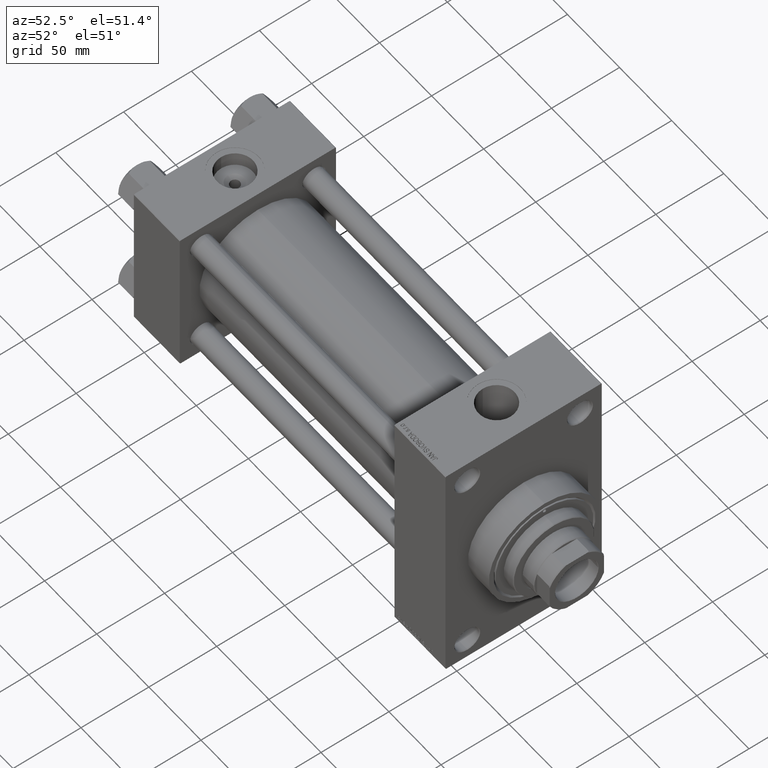
[diagram: clean part render]
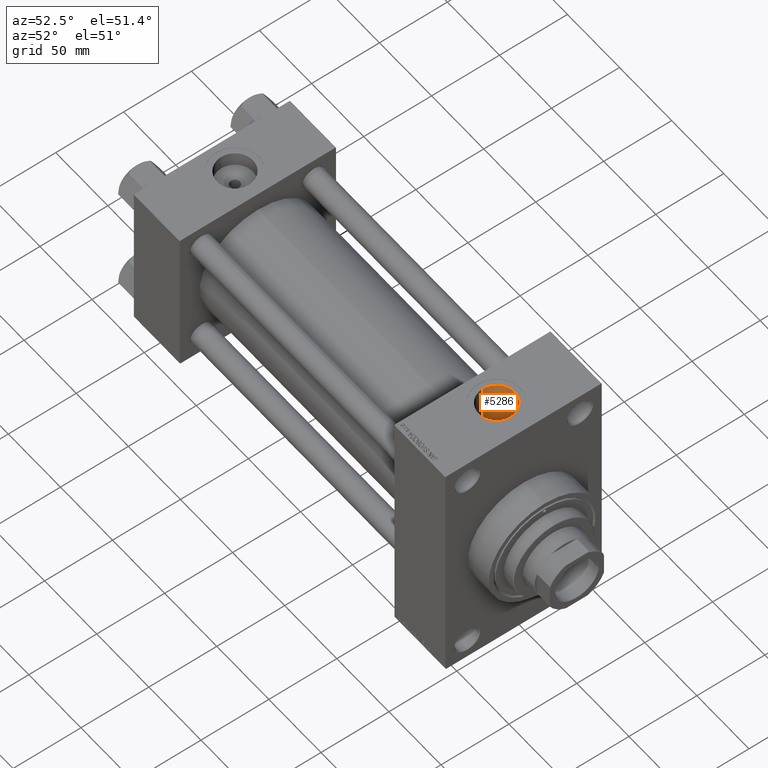
[diagram: same view with one face highlighted and labeled with its STEP entity id]
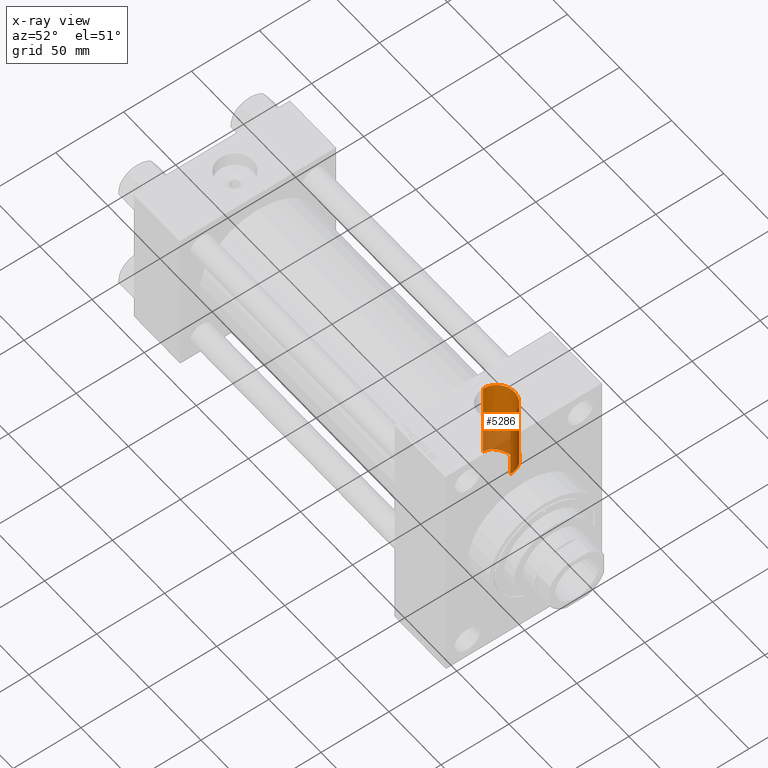
[diagram: x-ray of the same camera — body ghosted, the highlighted face saturated]
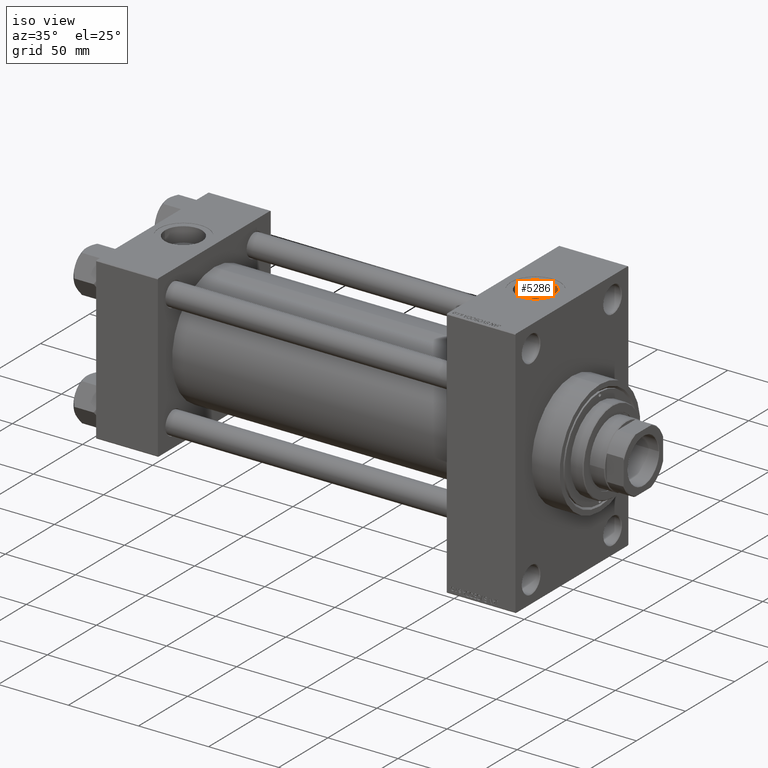
[diagram: same view with one face highlighted and labeled with its STEP entity id]
A machine part, auxiliary view. The second image highlights one B-rep face of the part: STEP entity #5286.
The next image is the same camera in x-ray: the body ghosted, the highlighted face saturated — about 26% of this face is hidden behind the body in this view.
A second angle (iso view) of the same face is appended — the face is thin or edge-on in the first view.
In plain terms, the highlighted cylindrical surface (edge-blend (fillet) strip) has radius 13.22 mm, axis along (0, 0, -1).
Its self-contained STEP definition (entity closure, byte-faithful):
#1492 = LINE ( 'NONE', #9232, #11199 ) ;
#2511 = EDGE_CURVE ( 'NONE', #24067, #32099, #21646, .T. ) ;
#2854 = CARTESIAN_POINT ( 'NONE',  ( 275.7400000000000091, 12.93293470176044480, 27.62225914004863725 ) ) ;
#3332 = EDGE_CURVE ( 'NONE', #7249, #31635, #1492, .T. ) ;
#3572 = CARTESIAN_POINT ( 'NONE',  ( 273.2851615108020269, 13.22613998524880330, 27.48307289366609751 ) ) ;
#4164 = DIRECTION ( 'NONE',  ( 0.000000000000000000, 0.000000000000000000, -1.000000000000000000 ) ) ;
#4218 = CARTESIAN_POINT ( 'NONE',  ( 277.2060821151613368, 12.55531642788233171, 33.74093801992368924 ) ) ;
#4615 = ORIENTED_EDGE ( 'NONE', *, *, #40670, .T. ) ;
#4694 = CARTESIAN_POINT ( 'NONE',  ( 284.6983450057127243, 6.168928695871298551, 35.46904263421718184 ) ) ;
#5286 = ADVANCED_FACE ( 'NONE', ( #25583 ), #18306, .F. ) ;
#6477 = CARTESIAN_POINT ( 'NONE',  ( 275.2536187678448414, 13.03598049970481298, 27.57401237756087653 ) ) ;
#6730 = CARTESIAN_POINT ( 'NONE',  ( 270.3256342958763412, 12.95594869095342005, 27.61177267963253001 ) ) ;
#6964 = CARTESIAN_POINT ( 'NONE',  ( 265.4271501200176431, 10.84687044312921067, 28.50745100355763739 ) ) ;
#7077 = EDGE_CURVE ( 'NONE', #45391, #24067, #30078, .T. ) ;
#7249 = VERTEX_POINT ( 'NONE', #35344 ) ;
#8328 = CARTESIAN_POINT ( 'NONE',  ( 282.2544909056828715, 9.447833359205615622, 34.73924717178597632 ) ) ;
#9232 = CARTESIAN_POINT ( 'NONE',  ( 286.2200000000000273, -9.241894346338513140E-15, 112.7999999999999829 ) ) ;
#9356 = AXIS2_PLACEMENT_3D ( 'NONE', #24749, #35164, #12895 ) ;
#10345 = CARTESIAN_POINT ( 'NONE',  ( 260.8710626762529046, 5.282033915368359978, 30.04254330308662446 ) ) ;
#10597 = CARTESIAN_POINT ( 'NONE',  ( 263.9320074090820185, 9.632030437268086942, 28.94142039359465457 ) ) ;
#11199 = VECTOR ( 'NONE', #45558, 1000.000000000000000 ) ;
#11239 = CARTESIAN_POINT ( 'NONE',  ( 278.5945103277782664, 12.00118958920800161, 33.94198458417642428 ) ) ;
#11319 = CARTESIAN_POINT ( 'NONE',  ( 261.5110741800254459, 6.613878971456253808, 29.78798023624083058 ) ) ;
#12895 = DIRECTION ( 'NONE',  ( 1.000000000000000000, 0.000000000000000000, 0.000000000000000000 ) ) ;
#14189 = ORIENTED_EDGE ( 'NONE', *, *, #7077, .T. ) ;
#14206 = CARTESIAN_POINT ( 'NONE',  ( 260.2233236804504486, 3.430416358514352559, 30.31031417239466563 ) ) ;
#14573 = DIRECTION ( 'NONE',  ( 0.000000000000000000, 0.000000000000000000, -1.000000000000000000 ) ) ;
#14611 = CARTESIAN_POINT ( 'NONE',  ( 286.0893087182808472, 1.892035420910307852, 35.95216273564662401 ) ) ;
#14688 = CARTESIAN_POINT ( 'NONE',  ( 259.9192796940201902, 1.977766912824119316, 30.43984725220107990 ) ) ;
#15090 = CARTESIAN_POINT ( 'NONE',  ( 276.4867003901546241, 12.77473711426742042, 33.65761171941716867 ) ) ;
#18204 = CARTESIAN_POINT ( 'NONE',  ( 275.7400000000000091, 12.93293470176044480, 112.7999999999999829 ) ) ;
#18231 = CARTESIAN_POINT ( 'NONE',  ( 275.7400000000000091, 12.93293470176044480, 27.62225914004863725 ) ) ;
#18306 = CYLINDRICAL_SURFACE ( 'NONE', #45286, 13.22000000000000952 ) ;
#18327 = CARTESIAN_POINT ( 'NONE',  ( 273.7777193278498089, 13.20633922326211618, 27.49264203546942653 ) ) ;
#18483 = CARTESIAN_POINT ( 'NONE',  ( 286.2200000000001410, 0.3819698288429343447, 36.00000000000001421 ) ) ;
#18960 = CARTESIAN_POINT ( 'NONE',  ( 259.7800000000000296, -1.086087741481131350E-14, 89.79999999999998295 ) ) ;
#19504 = ORIENTED_EDGE ( 'NONE', *, *, #25646, .F. ) ;
#20483 = CARTESIAN_POINT ( 'NONE',  ( 286.2200000000000273, 4.408731805096607676E-15, 36.00000000000000000 ) ) ;
#21235 = CARTESIAN_POINT ( 'NONE',  ( 272.2979727381282373, 13.21057355757989349, 27.49055875873992250 ) ) ;
#21646 = B_SPLINE_CURVE_WITH_KNOTS ( 'NONE', 3,
 ( #32619, #47383, #25603, #14688, #44478, #14206, #32380, #43517, #10345, #11319, #43766, #32856, #29012, #10597, #33103, #44231, #6964, #26091, #40357, #21720, #36484, #6730, #36726, #39888, #21235, #3572, #18327, #29255, #6477, #2854 ),
 .UNSPECIFIED., .F., .F.,
 ( 4, 2, 2, 2, 2, 2, 2, 2, 2, 2, 2, 2, 2, 2, 4 ),
 ( 0.04185757538675115297, 0.04333653936425788111, 0.04481550334176460926, 0.04629446731927133740, 0.04777343129677806555, 0.05073135925179159123, 0.05221032322929840264, 0.05368928720680521405, 0.05516825118431202546, 0.05664721516181883687, 0.05960514311683231398, 0.06108410709433896579, 0.06256307107184562455, 0.06404203504935228330, 0.06552099902685894206 ),
 .UNSPECIFIED. ) ;
#21720 = CARTESIAN_POINT ( 'NONE',  ( 267.9827127633823238, 12.27015841204412361, 27.92701712990833585 ) ) ;
#21834 = ORIENTED_EDGE ( 'NONE', *, *, #2511, .T. ) ;
#22190 = DIRECTION ( 'NONE',  ( 0.000000000000000000, 0.000000000000000000, -1.000000000000000000 ) ) ;
#22854 = CARTESIAN_POINT ( 'NONE',  ( 283.0210832298417358, 8.630590761265725774, 34.95143037011763454 ) ) ;
#23092 = CARTESIAN_POINT ( 'NONE',  ( 284.1498648550291932, 7.141648424859561750, 35.29067191690105432 ) ) ;
#23751 = CARTESIAN_POINT ( 'NONE',  ( 259.7800000000000296, -1.086087741481131350E-14, 112.7999999999999829 ) ) ;
#24067 = VERTEX_POINT ( 'NONE', #43857 ) ;
#24749 = CARTESIAN_POINT ( 'NONE',  ( 273.0000000000000000, -1.086087741481131350E-14, 89.79999999999998295 ) ) ;
#25000 = LINE ( 'NONE', #18204, #45165 ) ;
#25374 = ORIENTED_EDGE ( 'NONE', *, *, #3332, .F. ) ;
#25583 = FACE_OUTER_BOUND ( 'NONE', #40840, .T. ) ;
#25603 = CARTESIAN_POINT ( 'NONE',  ( 259.8074965746005773, 0.9872482238805222465, 30.48805017778670745 ) ) ;
#25646 = EDGE_CURVE ( 'NONE', #45391, #7249, #30323, .T. ) ;
#25765 = CARTESIAN_POINT ( 'NONE',  ( 279.2649626807106529, 11.66558850424324767, 34.06003150599318019 ) ) ;
#26014 = CARTESIAN_POINT ( 'NONE',  ( 285.8962416663182466, 3.003490287928891611, 35.88217189229080617 ) ) ;
#26091 = CARTESIAN_POINT ( 'NONE',  ( 266.2405905081906212, 11.37158902866327459, 28.30223178644142124 ) ) ;
#26249 = CARTESIAN_POINT ( 'NONE',  ( 285.7051556392588054, 3.731388303156869313, 35.81334052950150948 ) ) ;
#29012 = CARTESIAN_POINT ( 'NONE',  ( 263.2493793498786658, 8.940352169284485839, 29.16250894268882732 ) ) ;
#29255 = CARTESIAN_POINT ( 'NONE',  ( 274.7607663062244683, 13.11151955524787738, 27.53798861069348902 ) ) ;
#30078 = LINE ( 'NONE', #23751, #30665 ) ;
#30323 = CIRCLE ( 'NONE', #9356, 13.22000000000000952 ) ;
#30367 = CARTESIAN_POINT ( 'NONE',  ( 281.9855853527145655, 9.703877399782259161, 34.66842035655220400 ) ) ;
#30665 = VECTOR ( 'NONE', #4164, 1000.000000000000000 ) ;
#31635 = VERTEX_POINT ( 'NONE', #20483 ) ;
#32099 = VERTEX_POINT ( 'NONE', #18231 ) ;
#32380 = CARTESIAN_POINT ( 'NONE',  ( 260.3594029954052189, 3.901785162874666035, 30.25300952143916788 ) ) ;
#32619 = CARTESIAN_POINT ( 'NONE',  ( 259.7800000000000296, 3.735152335240900306E-15, 30.50000000000000000 ) ) ;
#32856 = CARTESIAN_POINT ( 'NONE',  ( 262.9260598174466850, 8.574286465039090643, 29.27263374885120228 ) ) ;
#33022 = CARTESIAN_POINT ( 'NONE',  ( 284.8678405391318620, 5.836387716606523668, 35.52542343625400889 ) ) ;
#33103 = CARTESIAN_POINT ( 'NONE',  ( 264.2896176093950658, 9.956384615881464839, 28.83096279477901547 ) ) ;
#33553 = CARTESIAN_POINT ( 'NONE',  ( 273.0000000000000000, -1.086087741481131350E-14, 112.7999999999999829 ) ) ;
#33981 = CARTESIAN_POINT ( 'NONE',  ( 281.1482271659915000, 10.43671964436603794, 34.45770319535726856 ) ) ;
#34164 = CARTESIAN_POINT ( 'NONE',  ( 275.7400000000000091, 12.93293470176044480, 33.59671412504503252 ) ) ;
#34351 = EDGE_CURVE ( 'NONE', #36599, #32099, #25000, .T. ) ;
#35164 = DIRECTION ( 'NONE',  ( -0.000000000000000000, -0.000000000000000000, -1.000000000000000000 ) ) ;
#35344 = CARTESIAN_POINT ( 'NONE',  ( 286.2200000000000273, -9.241894346338516295E-15, 89.79999999999998295 ) ) ;
#36484 = CARTESIAN_POINT ( 'NONE',  ( 268.8969839307878829, 12.60537237624622264, 27.77446624569850542 ) ) ;
#36599 = VERTEX_POINT ( 'NONE', #34164 ) ;
#36726 = CARTESIAN_POINT ( 'NONE',  ( 270.8119409645371434, 13.04724532387752056, 27.56854024737253539 ) ) ;
#36885 = B_SPLINE_CURVE_WITH_KNOTS ( 'NONE', 3,
 ( #37367, #15090, #4218, #11239, #25765, #41501, #33981, #30367, #8328, #47788, #22854, #37853, #23092, #4694, #33022, #40775, #44395, #26249, #26014, #14611, #40524, #36890, #18483, #44647 ),
 .UNSPECIFIED., .F., .F.,
 ( 4, 2, 2, 2, 2, 2, 2, 2, 2, 2, 2, 4 ),
 ( 0.000000000000000000, 0.002262540966026175236, 0.004525081932052350472, 0.006787622898078526576, 0.007918893381091550443, 0.009050163864104574310, 0.01131270483013062725, 0.01244397531314365285, 0.01357524579615668019, 0.01583778676218273659, 0.01696905724519577954, 0.01810032772820881902 ),
 .UNSPECIFIED. ) ;
#36890 = CARTESIAN_POINT ( 'NONE',  ( 286.2033327349466276, 0.7640029534828054469, 35.99386990409605147 ) ) ;
#36946 = DIRECTION ( 'NONE',  ( -1.000000000000000000, 0.000000000000000000, 0.000000000000000000 ) ) ;
#37367 = CARTESIAN_POINT ( 'NONE',  ( 275.7400000000000091, 12.93293470176044480, 33.59671412504503252 ) ) ;
#37853 = CARTESIAN_POINT ( 'NONE',  ( 283.7312113704626881, 7.757108125705390655, 35.15943117783078264 ) ) ;
#39888 = CARTESIAN_POINT ( 'NONE',  ( 271.8033419719259882, 13.17521242515508106, 27.50761348180684251 ) ) ;
#40357 = CARTESIAN_POINT ( 'NONE',  ( 266.6661582615323596, 11.61426874580964963, 28.20310319464547888 ) ) ;
#40524 = CARTESIAN_POINT ( 'NONE',  ( 286.1379817546423396, 1.518265865167186535, 35.96994912351961915 ) ) ;
#40670 = EDGE_CURVE ( 'NONE', #36599, #31635, #36885, .T. ) ;
#40775 = CARTESIAN_POINT ( 'NONE',  ( 285.1796393711019846, 5.154167772853353036, 35.63079688237382925 ) ) ;
#40840 = EDGE_LOOP ( 'NONE', ( #25374, #19504, #14189, #21834, #41652, #4615 ) ) ;
#41501 = CARTESIAN_POINT ( 'NONE',  ( 280.5493998682712800, 10.87852352895258790, 34.31951962323490335 ) ) ;
#41652 = ORIENTED_EDGE ( 'NONE', *, *, #34351, .F. ) ;
#43517 = CARTESIAN_POINT ( 'NONE',  ( 260.6830193899778010, 4.827070409900204417, 30.11922814116231351 ) ) ;
#43766 = CARTESIAN_POINT ( 'NONE',  ( 262.0260244560769820, 7.434870375886630356, 29.59044782374042271 ) ) ;
#43857 = CARTESIAN_POINT ( 'NONE',  ( 259.7800000000000296, 3.735152335240900306E-15, 30.50000000000000000 ) ) ;
#44231 = CARTESIAN_POINT ( 'NONE',  ( 265.0371891369869672, 10.56380609296687645, 28.61398279029830860 ) ) ;
#44395 = CARTESIAN_POINT ( 'NONE',  ( 285.3223465543049997, 4.803346231252606735, 35.67993160896549654 ) ) ;
#44478 = CARTESIAN_POINT ( 'NONE',  ( 260.0034013176459098, 2.469744289827813244, 30.40367189608673826 ) ) ;
#44647 = CARTESIAN_POINT ( 'NONE',  ( 286.2200000000000273, 4.408731805096607676E-15, 36.00000000000000000 ) ) ;
#45165 = VECTOR ( 'NONE', #14573, 1000.000000000000000 ) ;
#45286 = AXIS2_PLACEMENT_3D ( 'NONE', #33553, #22190, #36946 ) ;
#45391 = VERTEX_POINT ( 'NONE', #18960 ) ;
#45558 = DIRECTION ( 'NONE',  ( 0.000000000000000000, 0.000000000000000000, -1.000000000000000000 ) ) ;
#47383 = CARTESIAN_POINT ( 'NONE',  ( 259.7800000000000296, 0.4930897905089571820, 30.49999999999999289 ) ) ;
#47788 = CARTESIAN_POINT ( 'NONE',  ( 282.7718099334105659, 8.911727539146806265, 34.88062444271564289 ) ) ;